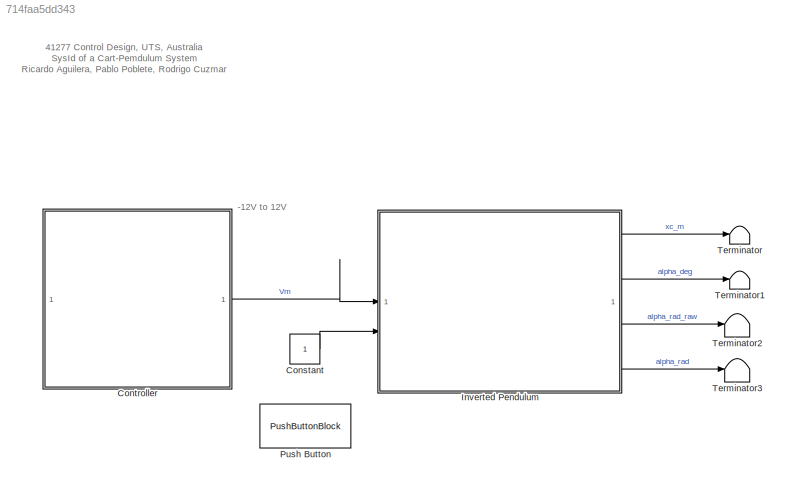
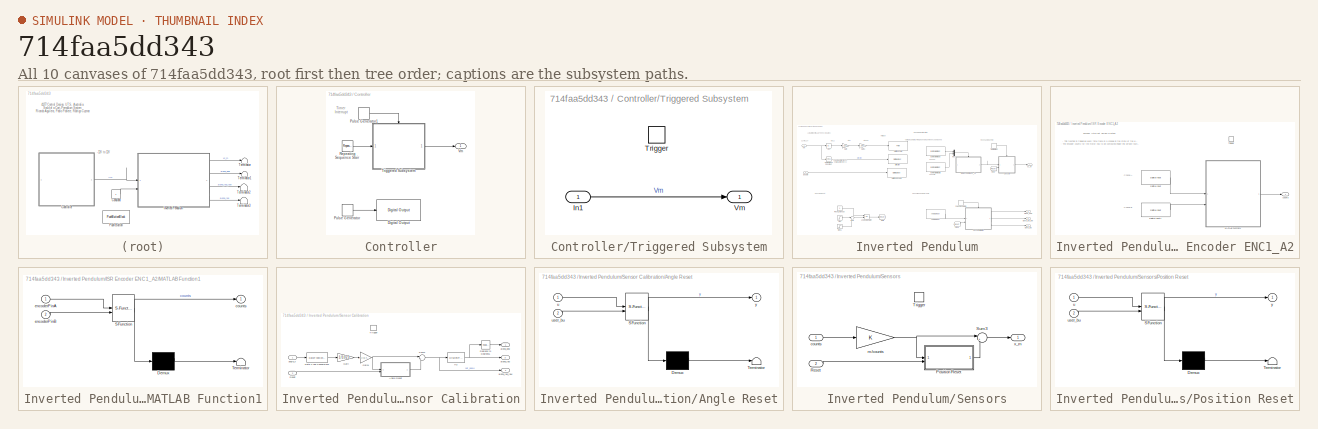
[diagram: thumbnail index - all 10 canvases of the model, root first then tree order]
MODEL slx_714faa5dd343
KIND model
CONFIG AbsTol = auto
CONFIG EnableMultiTasking = on
CONFIG FixedStep = auto
CONFIG InitFcn = run('Teensy41_system_init.m');
CONFIG MaxStep = auto
CONFIG MinStep = auto
CONFIG RelTol = 1e-3
CONFIG SampleTimeConstraint = Unconstrained
CONFIG SolverName = FixedStepAuto
CONFIG StartTime = 0.0
CONFIG StopFcn = run('Teensy41_to_save_data.m');
CONFIG StopTime = 18
BLOCK [Constant] Constant
BLOCK [SubSystem] Controller
  TreatAsAtomicUnit = on
BLOCK [Reference] Controller/Digital Output  REF=arduinolib/Digital Output
  SourceBlock = arduinolib/Digital Output
  SourceProductName = Common
  SourceType = Arduino Digital Output
BLOCK [DiscretePulseGenerator] Controller/Pulse Generator
  Period = 4
  PulseType = Time based
  PulseWidth = 50
BLOCK [DiscretePulseGenerator] Controller/Pulse Generator1
  Period = ts
  PulseType = Time based
  PulseWidth = 50
BLOCK [Reference] Controller/Repeating Sequence Stair  REF=simulink/Sources/Repeating
Sequence
Stair
  SourceBlock = simulink/Sources/Repeating\nSequence\nStair
  SourceType = Repeating Sequence Stair
BLOCK [SubSystem] Controller/Triggered Subsystem
  TreatAsAtomicUnit = on
BLOCK [Inport] Controller/Triggered Subsystem/In1
BLOCK [TriggerPort] Controller/Triggered Subsystem/Trigger
  StatesWhenEnabling = held
  VariantControl = (inherit)
BLOCK [Outport] Controller/Triggered Subsystem/Vm
BLOCK [Outport] Controller/Vm
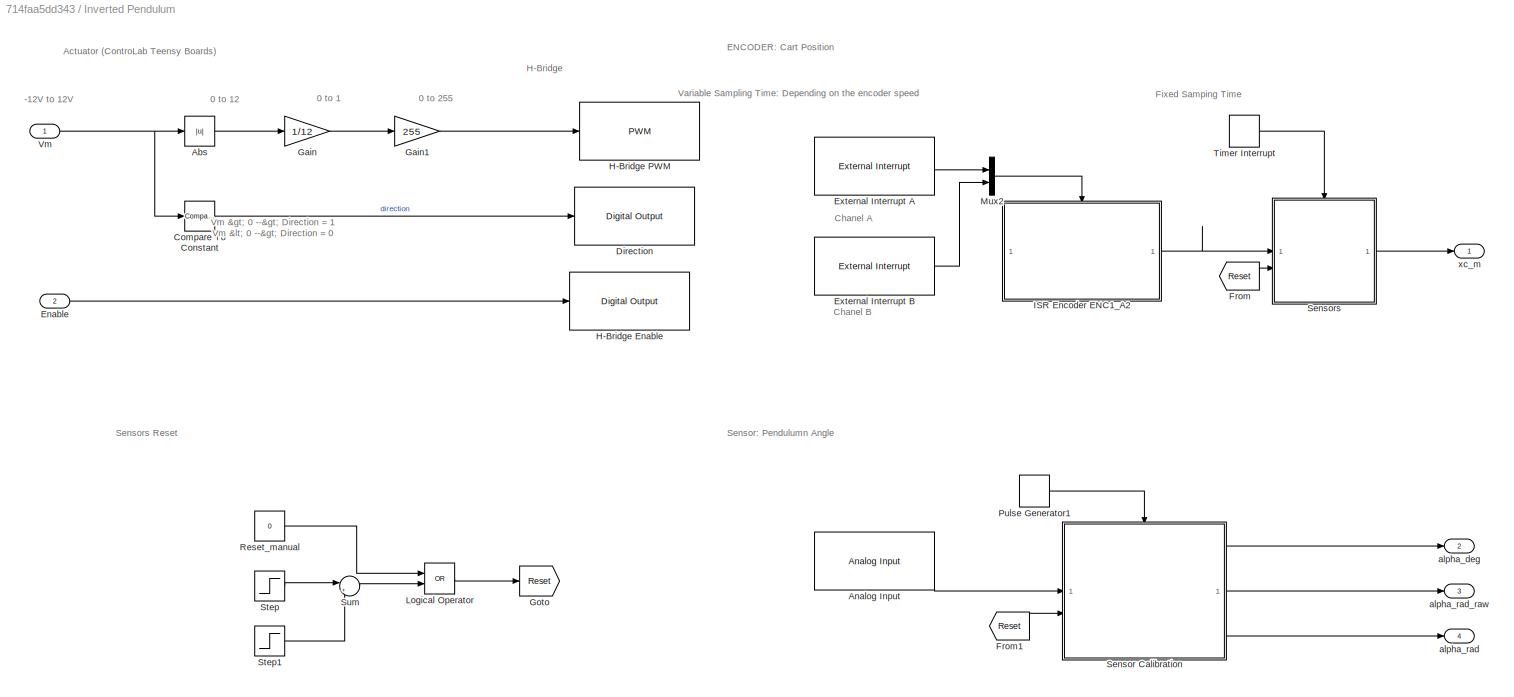
BLOCK [SubSystem] Inverted Pendulum
BLOCK [Abs] Inverted Pendulum/Abs
  SaturateOnIntegerOverflow = off
BLOCK [Reference] Inverted Pendulum/Analog Input  REF=arduinolib/Analog Input
  SourceBlock = arduinolib/Analog Input
  SourceProductName = Common
  SourceType = Arduino Analog Input
BLOCK [Reference] Inverted Pendulum/Compare To Constant  REF=simulink/Logic and Bit
Operations/Compare
To Constant
  SourceBlock = simulink/Logic and Bit\nOperations/Compare\nTo Constant
  SourceType = Compare To Constant
BLOCK [Reference] Inverted Pendulum/Direction  REF=arduinolib/Digital Output
  SourceBlock = arduinolib/Digital Output
  SourceProductName = Common
  SourceType = Arduino Digital Output
BLOCK [Inport] Inverted Pendulum/Enable
  Port = 2
BLOCK [Reference] Inverted Pendulum/External Interrupt A   REF=arduinolib/External Interrupt
  SourceBlock = arduinolib/External Interrupt
  SourceProductName = Common
  SourceType = Arduino Interrupt Block
BLOCK [Reference] Inverted Pendulum/External Interrupt B  REF=arduinolib/External Interrupt
  Commented = on
  SourceBlock = arduinolib/External Interrupt
  SourceProductName = Common
  SourceType = Arduino Interrupt Block
BLOCK [From] Inverted Pendulum/From
  GotoTag = Reset
  TagVisibility = global
BLOCK [From] Inverted Pendulum/From1
  GotoTag = Reset
  TagVisibility = global
BLOCK [Gain] Inverted Pendulum/Gain
  Gain = 1/12
BLOCK [Gain] Inverted Pendulum/Gain1
  Gain = 255
BLOCK [Goto] Inverted Pendulum/Goto
  GotoTag = Reset
  TagVisibility = global
BLOCK [Reference] Inverted Pendulum/H-Bridge Enable  REF=arduinolib/Digital Output
  SourceBlock = arduinolib/Digital Output
  SourceProductName = Common
  SourceType = Arduino Digital Output
BLOCK [Reference] Inverted Pendulum/H-Bridge PWM  REF=arduinolib/PWM
  SourceBlock = arduinolib/PWM
  SourceProductName = Common
  SourceType = Arduino PWM
BLOCK [SubSystem] Inverted Pendulum/ISR Encoder ENC1_A2
  TreatAsAtomicUnit = on
BLOCK [Reference] Inverted Pendulum/ISR Encoder ENC1_A2/Digital Input  REF=arduinolib/Digital Input
  SourceBlock = arduinolib/Digital Input
  SourceProductName = Common
  SourceType = Arduino Digital Input
BLOCK [Reference] Inverted Pendulum/ISR Encoder ENC1_A2/Digital Input1  REF=arduinolib/Digital Input
  SourceBlock = arduinolib/Digital Input
  SourceProductName = Common
  SourceType = Arduino Digital Input
BLOCK [SubSystem] Inverted Pendulum/ISR Encoder ENC1_A2/MATLAB Function1
  ErrorFcn = Stateflow.Translate.translate
  LibrarySourceBlock = simulink/User-Defined\nFunctions/MATLAB Function
  PermitHierarchicalResolution = ExplicitOnly
  SFBlockType = MATLAB Function
  TreatAsAtomicUnit = on
BLOCK [Demux] Inverted Pendulum/ISR Encoder ENC1_A2/MATLAB Function1/ Demux 
  Outputs = 1
BLOCK [S-Function] Inverted Pendulum/ISR Encoder ENC1_A2/MATLAB Function1/ SFunction 
  EnableBusSupport = on
  FunctionName = sf_sfun
  PortCounts = [2 2]
  SFcnIsStateOwnerBlock = off
  SFunctionDeploymentMode = off
  Tag = Stateflow S-Function 2
BLOCK [Terminator] Inverted Pendulum/ISR Encoder ENC1_A2/MATLAB Function1/ Terminator 
BLOCK [Outport] Inverted Pendulum/ISR Encoder ENC1_A2/MATLAB Function1/counts
BLOCK [Inport] Inverted Pendulum/ISR Encoder ENC1_A2/MATLAB Function1/encoderPinA
BLOCK [Inport] Inverted Pendulum/ISR Encoder ENC1_A2/MATLAB Function1/encoderPinB
  Port = 2
BLOCK [TriggerPort] Inverted Pendulum/ISR Encoder ENC1_A2/Trigger
  StatesWhenEnabling = held
  TriggerType = function-call
  VariantControl = (inherit)
BLOCK [Outport] Inverted Pendulum/ISR Encoder ENC1_A2/counts
BLOCK [Logic] Inverted Pendulum/Logical Operator
  AllPortsSameDT = off
  Operator = OR
  OutDataTypeStr = boolean
BLOCK [Mux] Inverted Pendulum/Mux2
  DisplayOption = bar
  Inputs = 2
BLOCK [DiscretePulseGenerator] Inverted Pendulum/Pulse Generator1
  Period = ts
  PulseType = Time based
  PulseWidth = 50
BLOCK [Constant] Inverted Pendulum/Reset_manual
  SampleTime = -1
  Value = 0
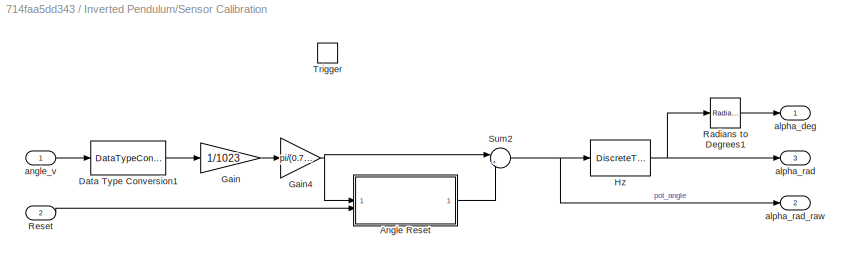
BLOCK [SubSystem] Inverted Pendulum/Sensor Calibration
BLOCK [SubSystem] Inverted Pendulum/Sensor Calibration/Angle Reset
  ErrorFcn = Stateflow.Translate.translate
  PermitHierarchicalResolution = ExplicitOnly
  SFBlockType = MATLAB Function
  TreatAsAtomicUnit = on
BLOCK [Demux] Inverted Pendulum/Sensor Calibration/Angle Reset/ Demux 
  Outputs = 1
BLOCK [S-Function] Inverted Pendulum/Sensor Calibration/Angle Reset/ SFunction 
  EnableBusSupport = on
  FunctionName = sf_sfun
  PortCounts = [2 2]
  SFcnIsStateOwnerBlock = off
  SFunctionDeploymentMode = off
  Tag = Stateflow S-Function 10
BLOCK [Terminator] Inverted Pendulum/Sensor Calibration/Angle Reset/ Terminator 
BLOCK [Inport] Inverted Pendulum/Sensor Calibration/Angle Reset/u
BLOCK [Inport] Inverted Pendulum/Sensor Calibration/Angle Reset/user_bu
  Port = 2
BLOCK [Outport] Inverted Pendulum/Sensor Calibration/Angle Reset/y
BLOCK [DataTypeConversion] Inverted Pendulum/Sensor Calibration/Data Type Conversion1
  RndMeth = Floor
  SaturateOnIntegerOverflow = off
BLOCK [Gain] Inverted Pendulum/Sensor Calibration/Gain
  Gain = 1/1023
BLOCK [Gain] Inverted Pendulum/Sensor Calibration/Gain4
  Gain = pi/(0.7645 - 0.2422)
  Multiplication = Matrix(K*u)
BLOCK [DiscreteTransferFcn] Inverted Pendulum/Sensor Calibration/Hz
  CloseFcn = dspblkCoreblockFVToolHelper(gcbh,'close');
  CopyFcn = dspblkCoreblockFVToolHelper(gcbh,'copy');
  DeleteFcn = dspblkCoreblockFVToolHelper(gcbh,'close');
  Denominator = Hz_den
  InputPortMap = u0
  LoadFcn = dspblkCoreblockFVToolHelper(gcbh,'load');
  ModelCloseFcn = dspblkCoreblockFVToolHelper(gcbh,'close');
  Numerator = Hz_num
  PostSaveFcn = dspblkCoreblockFVToolHelper(gcbh,'postsave');
  PreSaveFcn = dspblkCoreblockFVToolHelper(gcbh,'presave');
BLOCK [Reference] Inverted Pendulum/Sensor Calibration/Radians to Degrees1  REF=simulink_extras/Transformations/Radians
to Degrees
  SourceBlock = simulink_extras/Transformations/Radians\nto Degrees
  SourceType = RadiansToDegrees
BLOCK [Inport] Inverted Pendulum/Sensor Calibration/Reset
  Port = 2
BLOCK [Sum] Inverted Pendulum/Sensor Calibration/Sum2
  Inputs = |+-
BLOCK [TriggerPort] Inverted Pendulum/Sensor Calibration/Trigger
  PortDimensions = 1
  StatesWhenEnabling = held
  VariantControl = (inherit)
BLOCK [Outport] Inverted Pendulum/Sensor Calibration/alpha_deg
BLOCK [Outport] Inverted Pendulum/Sensor Calibration/alpha_rad
  Port = 3
BLOCK [Outport] Inverted Pendulum/Sensor Calibration/alpha_rad_raw
  Port = 2
BLOCK [Inport] Inverted Pendulum/Sensor Calibration/angle_v
BLOCK [SubSystem] Inverted Pendulum/Sensors
BLOCK [SubSystem] Inverted Pendulum/Sensors/Position Reset
  ErrorFcn = Stateflow.Translate.translate
  PermitHierarchicalResolution = ExplicitOnly
  SFBlockType = MATLAB Function
  TreatAsAtomicUnit = on
BLOCK [Demux] Inverted Pendulum/Sensors/Position Reset/ Demux 
  Outputs = 1
BLOCK [S-Function] Inverted Pendulum/Sensors/Position Reset/ SFunction 
  EnableBusSupport = on
  FunctionName = sf_sfun
  PortCounts = [2 2]
  SFcnIsStateOwnerBlock = off
  SFunctionDeploymentMode = off
  Tag = Stateflow S-Function 9
BLOCK [Terminator] Inverted Pendulum/Sensors/Position Reset/ Terminator 
BLOCK [Inport] Inverted Pendulum/Sensors/Position Reset/u
BLOCK [Inport] Inverted Pendulum/Sensors/Position Reset/user_bu
  Port = 2
BLOCK [Outport] Inverted Pendulum/Sensors/Position Reset/y
BLOCK [Inport] Inverted Pendulum/Sensors/Reset
  Port = 2
BLOCK [Sum] Inverted Pendulum/Sensors/Sum3
  Inputs = |+-
BLOCK [TriggerPort] Inverted Pendulum/Sensors/Trigger
  PortDimensions = 1
  StatesWhenEnabling = held
  VariantControl = (inherit)
BLOCK [Inport] Inverted Pendulum/Sensors/counts
BLOCK [Gain] Inverted Pendulum/Sensors/m//counts
BLOCK [Outport] Inverted Pendulum/Sensors/x_m
BLOCK [Step] Inverted Pendulum/Step
  Time = ts
BLOCK [Step] Inverted Pendulum/Step1
  After = -1
  Time = 2*ts
BLOCK [Sum] Inverted Pendulum/Sum
  Inputs = |++
BLOCK [DiscretePulseGenerator] Inverted Pendulum/Timer Interrupt
  Period = ts
  PulseType = Time based
  PulseWidth = 50
BLOCK [Inport] Inverted Pendulum/Vm
BLOCK [Outport] Inverted Pendulum/alpha_deg
  Port = 2
BLOCK [Outport] Inverted Pendulum/alpha_rad
  Port = 4
BLOCK [Outport] Inverted Pendulum/alpha_rad_raw
  Port = 3
BLOCK [Outport] Inverted Pendulum/xc_m
BLOCK [PushButtonBlock] Push Button
  ButtonText = Sensor Reset
  OffValue = 0.000000
BLOCK [Terminator] Terminator
BLOCK [Terminator] Terminator1
BLOCK [Terminator] Terminator2
BLOCK [Terminator] Terminator3
ANNOTATION (root): -12V to 12V
ANNOTATION (root): 41277 Control Design, UTS, Australia SysId of a Cart-Pemdulum System Ricardo Aguilera, Pablo Poblete, Rodrigo Cuzmar
ANNOTATION Controller: Timer Interrupt
ANNOTATION Inverted Pendulum: Chanel A
ANNOTATION Inverted Pendulum: Chanel B
ANNOTATION Inverted Pendulum: -12V to 12V
ANNOTATION Inverted Pendulum: 0 to 12
ANNOTATION Inverted Pendulum: 0 to 1
ANNOTATION Inverted Pendulum: 0 to 255
ANNOTATION Inverted Pendulum: Vm > 0 --> Direction = 1 Vm < 0 --> Direction = 0
ANNOTATION Inverted Pendulum: Actuator (ControLab Teensy Boards)
ANNOTATION Inverted Pendulum: ENCODER: Cart Position
ANNOTATION Inverted Pendulum: Fixed Samping Time
ANNOTATION Inverted Pendulum: H-Bridge
ANNOTATION Inverted Pendulum: Sensor: Pendulumn Angle
ANNOTATION Inverted Pendulum: Sensors Reset
ANNOTATION Inverted Pendulum: Variable Sampling Time: Depending on the encoder speed
ANNOTATION Inverted Pendulum/ISR Encoder ENC1_A2: - This function is triggered every time there is a change in the state of the encoder channels. - The encoder counts for the motor has to be computed inside this service routine.
ANNOTATION Inverted Pendulum/ISR Encoder ENC1_A2: Chanel A
ANNOTATION Inverted Pendulum/ISR Encoder ENC1_A2: Chanel B
ANNOTATION Inverted Pendulum/ISR Encoder ENC1_A2: Encoder Interrupt Service Routine
LINE Constant:1 -> Inverted Pendulum:2
LINE Controller/Pulse Generator1:1 -> Controller/Triggered Subsystem:trigger
LINE Controller/Pulse Generator:1 -> Controller/Digital Output:1
LINE Controller/Repeating Sequence Stair:1 -> Controller/Triggered Subsystem:1
LINE Controller/Triggered Subsystem/In1:1 -> Controller/Triggered Subsystem/Vm:1
LINE Controller/Triggered Subsystem:1 -> Controller/Vm:1
LINE Controller:1 -> Inverted Pendulum:1
LINE Inverted Pendulum/Abs:1 -> Inverted Pendulum/Gain:1
LINE Inverted Pendulum/Analog Input:1 -> Inverted Pendulum/Sensor Calibration:1
LINE Inverted Pendulum/Compare To Constant:1 -> Inverted Pendulum/Direction:1
LINE Inverted Pendulum/Enable:1 -> Inverted Pendulum/H-Bridge Enable:1
LINE Inverted Pendulum/External Interrupt A :1 -> Inverted Pendulum/Mux2:1
LINE Inverted Pendulum/External Interrupt B:1 -> Inverted Pendulum/Mux2:2
LINE Inverted Pendulum/From1:1 -> Inverted Pendulum/Sensor Calibration:2
LINE Inverted Pendulum/From:1 -> Inverted Pendulum/Sensors:2
LINE Inverted Pendulum/Gain1:1 -> Inverted Pendulum/H-Bridge PWM:1
LINE Inverted Pendulum/Gain:1 -> Inverted Pendulum/Gain1:1
LINE Inverted Pendulum/ISR Encoder ENC1_A2/Digital Input1:1 -> Inverted Pendulum/ISR Encoder ENC1_A2/MATLAB Function1:2
LINE Inverted Pendulum/ISR Encoder ENC1_A2/Digital Input:1 -> Inverted Pendulum/ISR Encoder ENC1_A2/MATLAB Function1:1
LINE Inverted Pendulum/ISR Encoder ENC1_A2/MATLAB Function1:1 -> Inverted Pendulum/ISR Encoder ENC1_A2/counts:1
LINE Inverted Pendulum/ISR Encoder ENC1_A2:1 -> Inverted Pendulum/Sensors:1
LINE Inverted Pendulum/Logical Operator:1 -> Inverted Pendulum/Goto:1
LINE Inverted Pendulum/Mux2:1 -> Inverted Pendulum/ISR Encoder ENC1_A2:trigger
LINE Inverted Pendulum/Pulse Generator1:1 -> Inverted Pendulum/Sensor Calibration:trigger
LINE Inverted Pendulum/Reset_manual:1 -> Inverted Pendulum/Logical Operator:1
LINE Inverted Pendulum/Sensor Calibration/Angle Reset:1 -> Inverted Pendulum/Sensor Calibration/Sum2:2
LINE Inverted Pendulum/Sensor Calibration/Data Type Conversion1:1 -> Inverted Pendulum/Sensor Calibration/Gain:1
NET Inverted Pendulum/Sensor Calibration/Gain4:1 -> Inverted Pendulum/Sensor Calibration/Angle Reset:1, Inverted Pendulum/Sensor Calibration/Sum2:1
LINE Inverted Pendulum/Sensor Calibration/Gain:1 -> Inverted Pendulum/Sensor Calibration/Gain4:1
NET Inverted Pendulum/Sensor Calibration/Hz:1 -> Inverted Pendulum/Sensor Calibration/Radians to Degrees1:1, Inverted Pendulum/Sensor Calibration/alpha_rad:1
LINE Inverted Pendulum/Sensor Calibration/Radians to Degrees1:1 -> Inverted Pendulum/Sensor Calibration/alpha_deg:1
LINE Inverted Pendulum/Sensor Calibration/Reset:1 -> Inverted Pendulum/Sensor Calibration/Angle Reset:2
NET Inverted Pendulum/Sensor Calibration/Sum2:1 -> Inverted Pendulum/Sensor Calibration/Hz:1, Inverted Pendulum/Sensor Calibration/alpha_rad_raw:1
LINE Inverted Pendulum/Sensor Calibration/angle_v:1 -> Inverted Pendulum/Sensor Calibration/Data Type Conversion1:1
LINE Inverted Pendulum/Sensor Calibration:1 -> Inverted Pendulum/alpha_deg:1
LINE Inverted Pendulum/Sensor Calibration:2 -> Inverted Pendulum/alpha_rad_raw:1
LINE Inverted Pendulum/Sensor Calibration:3 -> Inverted Pendulum/alpha_rad:1
LINE Inverted Pendulum/Sensors/Position Reset:1 -> Inverted Pendulum/Sensors/Sum3:2
LINE Inverted Pendulum/Sensors/Reset:1 -> Inverted Pendulum/Sensors/Position Reset:2
LINE Inverted Pendulum/Sensors/Sum3:1 -> Inverted Pendulum/Sensors/x_m:1
LINE Inverted Pendulum/Sensors/counts:1 -> Inverted Pendulum/Sensors/m//counts:1
NET Inverted Pendulum/Sensors/m//counts:1 -> Inverted Pendulum/Sensors/Position Reset:1, Inverted Pendulum/Sensors/Sum3:1
LINE Inverted Pendulum/Sensors:1 -> Inverted Pendulum/xc_m:1
LINE Inverted Pendulum/Step1:1 -> Inverted Pendulum/Sum:2
LINE Inverted Pendulum/Step:1 -> Inverted Pendulum/Sum:1
LINE Inverted Pendulum/Sum:1 -> Inverted Pendulum/Logical Operator:2
LINE Inverted Pendulum/Timer Interrupt:1 -> Inverted Pendulum/Sensors:trigger
NET Inverted Pendulum/Vm:1 -> Inverted Pendulum/Abs:1, Inverted Pendulum/Compare To Constant:1
LINE Inverted Pendulum:1 -> Terminator:1
LINE Inverted Pendulum:2 -> Terminator1:1
LINE Inverted Pendulum:3 -> Terminator2:1
LINE Inverted Pendulum:4 -> Terminator3:1
note: NET lines group one-source signal fan-out (src -> all destinations, sorted); 1:1 wires keep LINE
CHART Inverted Pendulum/Sensors/Position Reset states=1 transitions=1
  STATE_LABEL 'eML_blk_kernel()'
  STATE_LABEL 'SCRIPT:\nfunction y = fcn(u, user_bu)\n\npersistent offset u_vec\n\nif isempty(offset)\n    offset = 0;\n    u_vec = zeros(20,1);\nend\n\nif(user_bu == 1)\n    u_vec = [u ; u_vec(1:end-1)];\n    offset = mean(u);\nend\n\ny = offset;\n\nend\n'
CHART Inverted Pendulum/Sensor Calibration/Angle Reset states=1 transitions=1
  STATE_LABEL 'eML_blk_kernel()'
  STATE_LABEL 'SCRIPT:\nfunction y = fcn(u, user_bu)\n\npersistent offset u_vec\n\nif isempty(offset)\n    offset = 0;\n    u_vec = zeros(20,1);\nend\n\nif(user_bu == 1)\n    u_vec = [u ; u_vec(1:end-1)];\n    offset = mean(u);\nend\n\ny = offset;\n\nend\n'
CHART Inverted Pendulum/ISR Encoder ENC1_A2/MATLAB Function1 states=1 transitions=1
  STATE_LABEL 'eML_blk_kernel()'
  STATE_LABEL 'SCRIPT:\nfunction counts = computeEncoderPosition(encoderPinA, encoderPinB)\n% This function determines the motor position based on the latest \n% state update for the encoder digital inputs. \n\n%% Persistent variables to store previous states and position\npersistent lastPosition\n\n% Initialize persistent variables on the first run\nif isempty(lastPosition)\n\n    lastPosition = 0;\nend\n\n\n%% Determine dire...<+252ch>'
CHART  states=0 transitions=0
CHART  states=0 transitions=0
CHART  states=0 transitions=0
